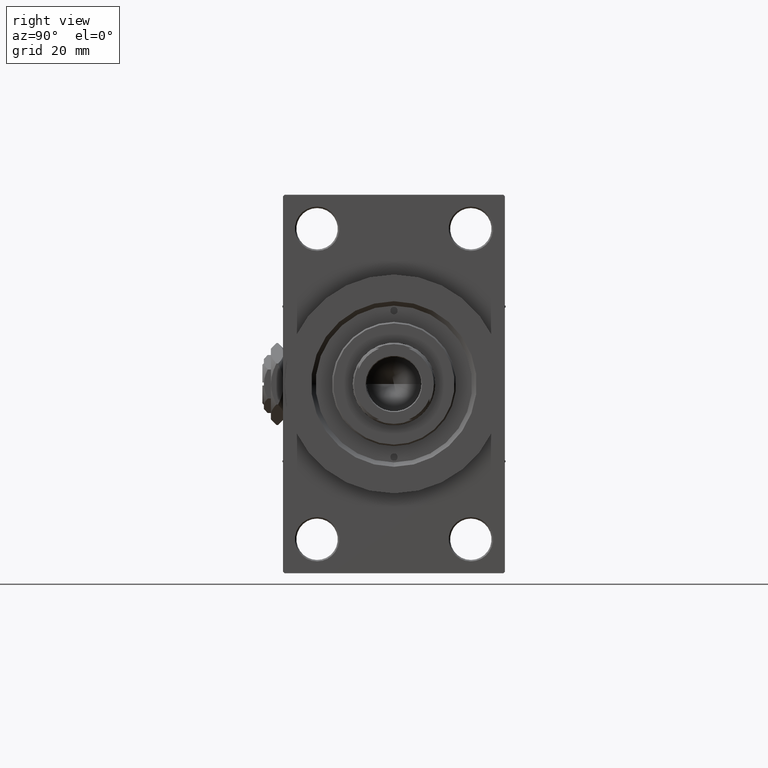
[diagram: clean part render]
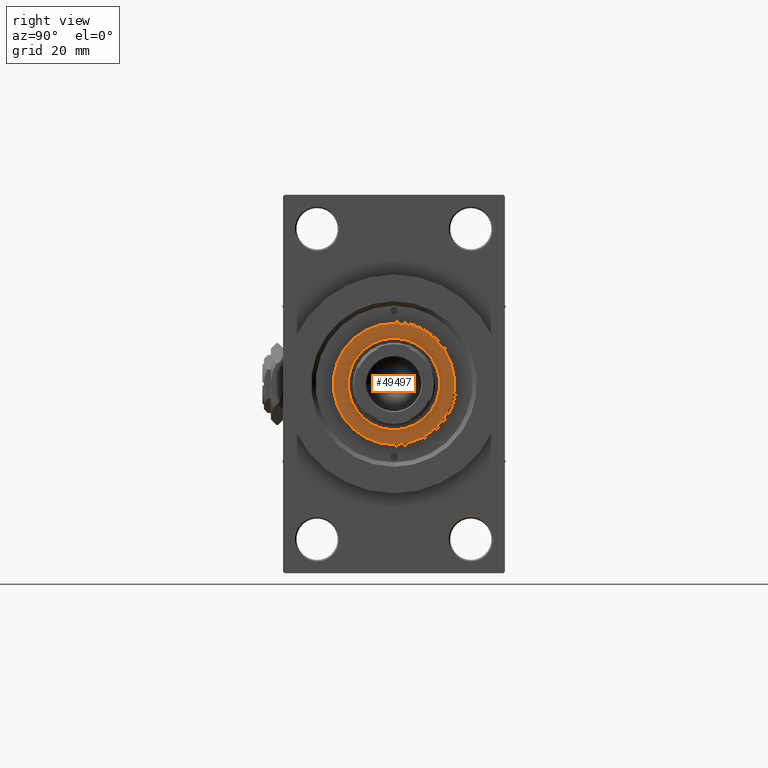
[diagram: same view with one face highlighted and labeled with its STEP entity id]
A machine part, right view. The second image highlights one B-rep face of the part: STEP entity #49497.
In plain terms, the highlighted planar face has unit normal (1, -0, -0).
Its self-contained STEP definition (entity closure, byte-faithful):
#1910 = DIRECTION ( 'NONE',  ( 0.000000000000000000, 0.000000000000000000, 1.000000000000000000 ) ) ;
#5012 = VERTEX_POINT ( 'NONE', #21152 ) ;
#5441 = EDGE_CURVE ( 'NONE', #16625, #34043, #20955, .T. ) ;
#6169 = DIRECTION ( 'NONE',  ( 1.000000000000000000, 0.000000000000000000, 0.000000000000000000 ) ) ;
#8984 = CARTESIAN_POINT ( 'NONE',  ( -15.50000000000000000, 1.898202538678397557E-15, 52.25999999999999801 ) ) ;
#10632 = DIRECTION ( 'NONE',  ( 1.000000000000000000, 0.000000000000000000, 0.000000000000000000 ) ) ;
#10911 = CARTESIAN_POINT ( 'NONE',  ( 0.000000000000000000, 0.000000000000000000, 52.25999999999999801 ) ) ;
#12167 = AXIS2_PLACEMENT_3D ( 'NONE', #23052, #22811, #37343 ) ;
#13814 = EDGE_LOOP ( 'NONE', ( #48298, #44193 ) ) ;
#13827 = EDGE_CURVE ( 'NONE', #34043, #16625, #24300, .T. ) ;
#15139 = EDGE_CURVE ( 'NONE', #16018, #5012, #30754, .T. ) ;
#16018 = VERTEX_POINT ( 'NONE', #28676 ) ;
#16625 = VERTEX_POINT ( 'NONE', #24548 ) ;
#20955 = CIRCLE ( 'NONE', #12167, 15.50000000000000000 ) ;
#21152 = CARTESIAN_POINT ( 'NONE',  ( 20.50000000000000355, 2.541142108230758269E-15, 52.25999999999999801 ) ) ;
#22512 = DIRECTION ( 'NONE',  ( 1.000000000000000000, 0.000000000000000000, -0.000000000000000000 ) ) ;
#22811 = DIRECTION ( 'NONE',  ( 0.000000000000000000, 0.000000000000000000, 1.000000000000000000 ) ) ;
#23052 = CARTESIAN_POINT ( 'NONE',  ( 0.000000000000000000, 0.000000000000000000, 52.25999999999999801 ) ) ;
#24180 = DIRECTION ( 'NONE',  ( 1.000000000000000000, 0.000000000000000000, 0.000000000000000000 ) ) ;
#24221 = ORIENTED_EDGE ( 'NONE', *, *, #5441, .F. ) ;
#24300 = CIRCLE ( 'NONE', #46710, 15.50000000000000000 ) ;
#24548 = CARTESIAN_POINT ( 'NONE',  ( 15.50000000000000000, 0.000000000000000000, 52.25999999999999801 ) ) ;
#26213 = CIRCLE ( 'NONE', #36595, 20.50000000000000355 ) ;
#28431 = CARTESIAN_POINT ( 'NONE',  ( 0.000000000000000000, 0.000000000000000000, 52.25999999999999801 ) ) ;
#28676 = CARTESIAN_POINT ( 'NONE',  ( -20.50000000000000355, 0.000000000000000000, 52.25999999999999801 ) ) ;
#29624 = DIRECTION ( 'NONE',  ( 0.000000000000000000, 0.000000000000000000, 1.000000000000000000 ) ) ;
#29656 = DIRECTION ( 'NONE',  ( 0.000000000000000000, 0.000000000000000000, 1.000000000000000000 ) ) ;
#30028 = FACE_BOUND ( 'NONE', #46416, .T. ) ;
#30754 = CIRCLE ( 'NONE', #43575, 20.50000000000000355 ) ;
#31878 = EDGE_CURVE ( 'NONE', #5012, #16018, #26213, .T. ) ;
#33521 = PLANE ( 'NONE',  #39920 ) ;
#34043 = VERTEX_POINT ( 'NONE', #8984 ) ;
#36595 = AXIS2_PLACEMENT_3D ( 'NONE', #28431, #1910, #24180 ) ;
#36885 = CARTESIAN_POINT ( 'NONE',  ( 0.000000000000000000, 0.000000000000000000, 52.25999999999999801 ) ) ;
#37343 = DIRECTION ( 'NONE',  ( 1.000000000000000000, 0.000000000000000000, 0.000000000000000000 ) ) ;
#39920 = AXIS2_PLACEMENT_3D ( 'NONE', #41549, #48319, #22512 ) ;
#41054 = FACE_OUTER_BOUND ( 'NONE', #13814, .T. ) ;
#41549 = CARTESIAN_POINT ( 'NONE',  ( 0.000000000000000000, 0.000000000000000000, 52.25999999999999801 ) ) ;
#43575 = AXIS2_PLACEMENT_3D ( 'NONE', #10911, #29656, #6169 ) ;
#44193 = ORIENTED_EDGE ( 'NONE', *, *, #31878, .T. ) ;
#46416 = EDGE_LOOP ( 'NONE', ( #24221, #49184 ) ) ;
#46710 = AXIS2_PLACEMENT_3D ( 'NONE', #36885, #29624, #10632 ) ;
#48298 = ORIENTED_EDGE ( 'NONE', *, *, #15139, .T. ) ;
#48319 = DIRECTION ( 'NONE',  ( 0.000000000000000000, 0.000000000000000000, 1.000000000000000000 ) ) ;
#49184 = ORIENTED_EDGE ( 'NONE', *, *, #13827, .F. ) ;
#49497 = ADVANCED_FACE ( 'NONE', ( #30028, #41054 ), #33521, .T. ) ;